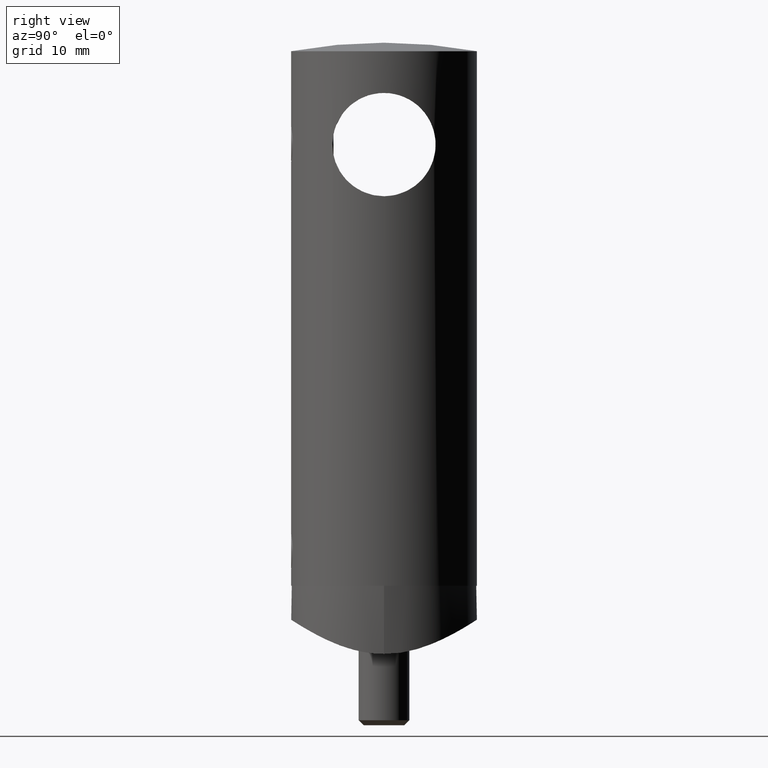
[diagram: clean part render]
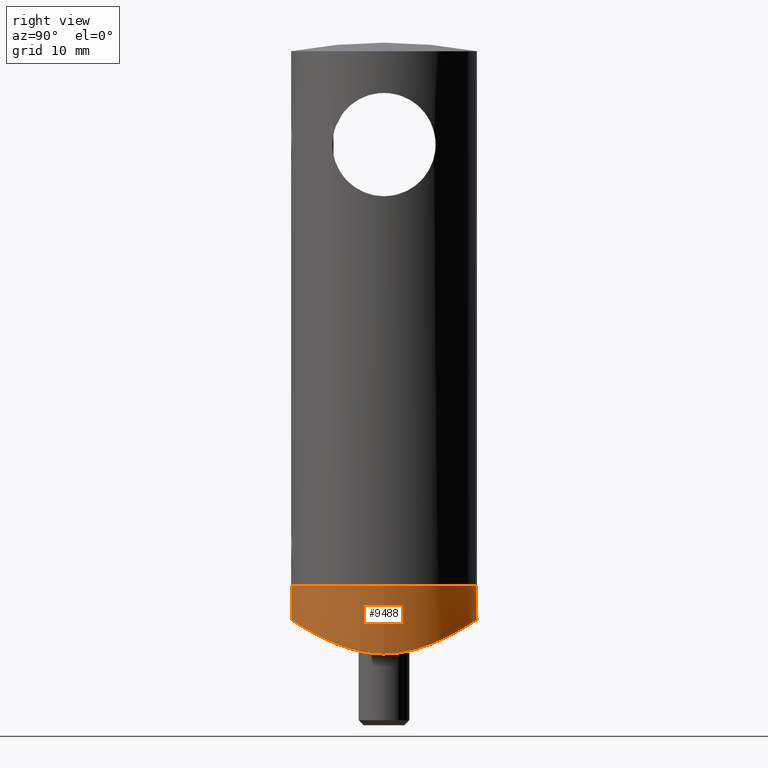
[diagram: same view with one face highlighted and labeled with its STEP entity id]
A machine part, right view. The second image highlights one B-rep face of the part: STEP entity #9488.
In plain terms, the highlighted cylindrical surface (bore or boss wall) has radius 10.95 mm, axis along (0, 0, 1).
Its self-contained STEP definition (entity closure, byte-faithful):
#514 = CARTESIAN_POINT ( 'NONE',  ( 0.000000000000000000, 10.94999999999999929, -5.750000000000001776 ) ) ;
#637 = CARTESIAN_POINT ( 'NONE',  ( -10.95198847609121451, -0.7118171743200889523, -9.794670814496956979 ) ) ;
#792 = CARTESIAN_POINT ( 'NONE',  ( -6.730030820169274008, 8.666679607907711969, -7.139533483458301077 ) ) ;
#843 = CARTESIAN_POINT ( 'NONE',  ( 4.917437567709627366, -9.810064059372233913, -6.468996850800253107 ) ) ;
#890 = CARTESIAN_POINT ( 'NONE',  ( 10.33681730554051192, -3.631079124461086938, -9.292408140327921728 ) ) ;
#938 = CARTESIAN_POINT ( 'NONE',  ( -2.959996584689042809, -10.56786301245745285, -5.996191686004162413 ) ) ;
#1001 = CARTESIAN_POINT ( 'NONE',  ( -9.809582634519843580, -4.878478684646284869, -8.898309364309685776 ) ) ;
#1053 = CARTESIAN_POINT ( 'NONE',  ( -4.645518892374168374, -9.922298315533529589, -6.399398219473660276 ) ) ;
#1276 = CARTESIAN_POINT ( 'NONE',  ( 0.000000000000000000, 0.000000000000000000, 5.750000000000000000 ) ) ;
#1561 = FACE_OUTER_BOUND ( 'NONE', #5871, .T. ) ;
#1812 = CARTESIAN_POINT ( 'NONE',  ( -10.64732733778773444, 2.582474402915730938, -9.539904010321800243 ) ) ;
#1856 = CARTESIAN_POINT ( 'NONE',  ( -10.87941567533503751, -1.441869195092188471, -9.731585385921057707 ) ) ;
#1920 = CARTESIAN_POINT ( 'NONE',  ( 0.000000000000000000, 0.000000000000000000, -1.749999999999998002 ) ) ;
#2012 = CARTESIAN_POINT ( 'NONE',  ( -7.998322242046567609, 7.486605205302141464, -7.766753881482975963 ) ) ;
#2058 = CARTESIAN_POINT ( 'NONE',  ( 10.23529659499144273, 3.907426802424408319, -9.213783028792283503 ) ) ;
#2117 = CARTESIAN_POINT ( 'NONE',  ( 1.452266532563440515, -10.87788132074340020, -5.797143923931495024 ) ) ;
#2168 = CARTESIAN_POINT ( 'NONE',  ( 8.667749000654012548, -6.700333129162086898, -8.148060830391628429 ) ) ;
#2211 = CARTESIAN_POINT ( 'NONE',  ( 4.627639269956550727, 9.930669703494444889, -6.394267290323226050 ) ) ;
#2257 = CARTESIAN_POINT ( 'NONE',  ( 10.21191707755098399, -3.967942517896859478, -9.195924782802006092 ) ) ;
#2988 = CARTESIAN_POINT ( 'NONE',  ( -10.85176810942076919, 1.509156963096680348, -9.709531812527981032 ) ) ;
#3041 = CARTESIAN_POINT ( 'NONE',  ( -4.934273506818555255, 9.801508284212960831, -6.474206939060009880 ) ) ;
#3140 = DIRECTION ( 'NONE',  ( -0.000000000000000000, -0.000000000000000000, 1.000000000000000000 ) ) ;
#3190 = CARTESIAN_POINT ( 'NONE',  ( -9.798886945069327226, 4.938032297541862015, -8.887830257643761556 ) ) ;
#3247 = CARTESIAN_POINT ( 'NONE',  ( -3.649986397884166678, -10.34898535425763377, -6.135751623057464244 ) ) ;
#3293 = CARTESIAN_POINT ( 'NONE',  ( 9.288931940382532559, 5.808586922625468496, -8.539723014647430333 ) ) ;
#3340 = CARTESIAN_POINT ( 'NONE',  ( 10.64640423190052054, -2.586355965133197987, -9.539149381438503994 ) ) ;
#3394 = CARTESIAN_POINT ( 'NONE',  ( -8.713248830424941360, -6.668291993733354239, -8.170402260772506864 ) ) ;
#3446 = CARTESIAN_POINT ( 'NONE',  ( 10.55479468711744673, -2.937828573796699150, -9.464624016628615522 ) ) ;
#3650 = CARTESIAN_POINT ( 'NONE',  ( 0.3733706210002074033, 10.94999999999999929, -5.750000000000003553 ) ) ;
#3898 = VERTEX_POINT ( 'NONE', #514 ) ;
#4264 = CARTESIAN_POINT ( 'NONE',  ( -8.883474752777638983, 6.411466823441349661, -8.280101745709313121 ) ) ;
#4367 = CARTESIAN_POINT ( 'NONE',  ( -5.556850910864768345, 9.461821083754074380, -6.680177522850429206 ) ) ;
#4420 = CARTESIAN_POINT ( 'NONE',  ( -10.33868571406257253, 3.625698530204107151, -9.293863955035334357 ) ) ;
#4461 = CARTESIAN_POINT ( 'NONE',  ( 8.266778147592914294, 7.214835360660763364, -7.906726903854046640 ) ) ;
#4511 = CARTESIAN_POINT ( 'NONE',  ( 10.85146791475362882, -1.511451789695886783, -9.709278500310860593 ) ) ;
#4567 = CARTESIAN_POINT ( 'NONE',  ( 10.87919409213141719, 1.444128645383031317, -9.731389579601888329 ) ) ;
#4614 = CARTESIAN_POINT ( 'NONE',  ( 10.94894190767665876, -0.4014474514221523793, -9.792066017781449361 ) ) ;
#4659 = CARTESIAN_POINT ( 'NONE',  ( -0.7738063085260448171, -10.92896024233015595, -5.763691165558240570 ) ) ;
#4920 = CARTESIAN_POINT ( 'NONE',  ( -8.673617379884035472E-16, 10.94999999999999929, -5.750000000000002665 ) ) ;
#4940 = EDGE_CURVE ( 'NONE', #3898, #3898, #9058, .T. ) ;
#5411 = CARTESIAN_POINT ( 'NONE',  ( -8.674436666472141511, 6.691646975888223992, -8.152084883947939176 ) ) ;
#5448 = CARTESIAN_POINT ( 'NONE',  ( 10.94999999999999929, 0.000000000000000000, -1.749999999999998002 ) ) ;
#5467 = CARTESIAN_POINT ( 'NONE',  ( -7.264775896212412931, 8.222237890532422711, -7.386554381788460688 ) ) ;
#5667 = CARTESIAN_POINT ( 'NONE',  ( -9.474494951377948837, -5.501037280035036225, -8.664499178143945102 ) ) ;
#5679 = FACE_OUTER_BOUND ( 'NONE', #11323, .T. ) ;
#5721 = CARTESIAN_POINT ( 'NONE',  ( 8.223414625171180603, -7.238769832133513660, -7.890687629840745565 ) ) ;
#5764 = CARTESIAN_POINT ( 'NONE',  ( 10.57043144332096674, 2.880786553959169272, -9.477236992533965676 ) ) ;
#5794 = AXIS2_PLACEMENT_3D ( 'NONE', #1276, #14428, #14339 ) ;
#5815 = CARTESIAN_POINT ( 'NONE',  ( 10.79473961177904329, -1.873167627655815792, -9.661478497784386832 ) ) ;
#5871 = EDGE_LOOP ( 'NONE', ( #14665 ) ) ;
#6392 = CIRCLE ( 'NONE', #13497, 10.94999999999999929 ) ;
#6745 = VERTEX_POINT ( 'NONE', #5448 ) ;
#6827 = CARTESIAN_POINT ( 'NONE',  ( -5.891917008406099221, -9.236332190205612136, -6.810640064963539686 ) ) ;
#6869 = CARTESIAN_POINT ( 'NONE',  ( 1.488582956514417077, 10.85474548004059869, -5.811770206739696576 ) ) ;
#6919 = CARTESIAN_POINT ( 'NONE',  ( 2.938192695712195768, 10.57404694462563732, -5.992248146107759688 ) ) ;
#6974 = CARTESIAN_POINT ( 'NONE',  ( -1.882258922895466702, -10.79325268188601328, -5.851537863896203895 ) ) ;
#7030 = CARTESIAN_POINT ( 'NONE',  ( 10.66134374622541436, 2.524523209338929597, -9.551355469383734587 ) ) ;
#7851 = CARTESIAN_POINT ( 'NONE',  ( -10.94894428843266887, 0.4008463375416358998, -9.792068053304609165 ) ) ;
#7908 = CARTESIAN_POINT ( 'NONE',  ( -10.79521210394975306, 1.870333956932258568, -9.661874852655529367 ) ) ;
#8005 = CARTESIAN_POINT ( 'NONE',  ( -0.7467412420004226892, 10.94999999999999929, -5.750000000000000000 ) ) ;
#8048 = CARTESIAN_POINT ( 'NONE',  ( -8.274706805201416771, -7.205644945949356561, -7.911238726087584716 ) ) ;
#8099 = CARTESIAN_POINT ( 'NONE',  ( -10.23745742856988628, -3.901712882491353174, -9.215441720334098363 ) ) ;
#8157 = CARTESIAN_POINT ( 'NONE',  ( 5.541342136532975360, -9.471014841782384508, -6.674707243084673891 ) ) ;
#8205 = CARTESIAN_POINT ( 'NONE',  ( 7.279761530226322996, 8.209661520793499534, -7.393522193404444387 ) ) ;
#8253 = CARTESIAN_POINT ( 'NONE',  ( -6.756981862805640837, -8.644869550942319236, -7.151699482660421658 ) ) ;
#9044 = CARTESIAN_POINT ( 'NONE',  ( -10.55599610924947918, 2.933437960413626033, -9.465593851156450356 ) ) ;
#9058 = B_SPLINE_CURVE_WITH_KNOTS ( 'NONE', 3,
 ( #10345, #8005, #10250, #12652, #11572, #3041, #4367, #792, #5467, #2012, #10395, #5411, #4264, #13878, #3190, #11619, #4420, #9044, #1812, #7908, #2988, #11470, #7851, #637, #1856, #12712, #13921, #15300, #8099, #15448, #1001, #5667, #9301, #3394, #8048, #12917, #8253, #6827, #11737, #10545, #1053, #3247, #938, #6974, #15245, #4659, #14268, #13072, #2117, #15349, #13110, #843, #8157, #9401, #9452, #9347, #5721, #2168, #9251, #10490, #13018, #2257, #890, #3446, #3340, #5815, #4511, #11837, #4614, #14072, #4567, #7030, #5764, #11782, #2058, #14227, #11677, #10645, #3293, #15397, #4461, #8205, #10441, #12968, #11894, #14122, #2211, #14171, #6919, #10597, #6869, #14508, #3650, #4920 ),
 .UNSPECIFIED., .T., .F.,
 ( 4, 2, 2, 2, 2, 2, 2, 2, 2, 2, 2, 2, 2, 2, 2, 2, 2, 2, 2, 2, 2, 2, 2, 2, 2, 2, 2, 2, 2, 2, 2, 2, 2, 2, 2, 2, 2, 2, 2, 2, 2, 2, 2, 2, 2, 2, 4 ),
 ( 0.000000000000000000, 0.002204674916900577816, 0.004409349833801155631, 0.006614024750701735615, 0.008818699667602314732, 0.009921037126052606459, 0.01102337458450289645, 0.01322804950140347297, 0.01433038695985375775, 0.01543272441830404601, 0.01653506187675433253, 0.01763739933520461906, 0.01984207425210519557, 0.02094441171055547862, 0.02204674916900576515, 0.02314908662745604820, 0.02425142408590633472, 0.02645609900280690777, 0.02866077391970747734, 0.02976311137815776733, 0.03086544883660805733, 0.03307012375350862343, 0.03417246121195890995, 0.03527479867040919648, 0.03747947358730976952, 0.03968414850421033563, 0.04188882342111090173, 0.04409349833801147478, 0.04519583579646176130, 0.04629817325491203395, 0.04850284817181260699, 0.04960518563026288658, 0.05070752308871317310, 0.05180986054716345268, 0.05291219800561372533, 0.05511687292251429837, 0.05621921038096458489, 0.05732154783941486448, 0.05842388529786515100, 0.05952622275631542365, 0.06173089767321599669, 0.06393557259011656280, 0.06503791004856684932, 0.06614024750701713584, 0.06834492242391770889, 0.06944725988236800929, 0.07054959734081828193 ),
 .UNSPECIFIED. ) ;
#9251 = CARTESIAN_POINT ( 'NONE',  ( 8.877433961888492320, -6.419858381013207271, -8.276346123866254345 ) ) ;
#9301 = CARTESIAN_POINT ( 'NONE',  ( -9.293821020510860009, -5.800730269746900980, -8.542963866343818324 ) ) ;
#9347 = CARTESIAN_POINT ( 'NONE',  ( 7.989808668690983495, -7.495715265412895789, -7.762153942458378530 ) ) ;
#9401 = CARTESIAN_POINT ( 'NONE',  ( 6.717999677049601992, -8.676120973484600540, -7.134234503047154341 ) ) ;
#9452 = CARTESIAN_POINT ( 'NONE',  ( 7.254245891667538082, -8.231620505888173511, -7.381482026767613114 ) ) ;
#9488 = ADVANCED_FACE ( 'NONE', ( #1561, #5679 ), #11534, .T. ) ;
#10250 = CARTESIAN_POINT ( 'NONE',  ( -1.477209388873391482, 10.87444454831140561, -5.799375572329035222 ) ) ;
#10345 = CARTESIAN_POINT ( 'NONE',  ( -8.673617379884035472E-16, 10.94999999999999929, -5.750000000000002665 ) ) ;
#10395 = CARTESIAN_POINT ( 'NONE',  ( -8.231296336865392860, 7.229782247430190267, -7.895107504779629970 ) ) ;
#10441 = CARTESIAN_POINT ( 'NONE',  ( 6.745065774781788370, 8.654267804473475323, -7.146432902309400426 ) ) ;
#10490 = CARTESIAN_POINT ( 'NONE',  ( 9.461595865578106057, -5.555570645424507070, -8.649577779853206749 ) ) ;
#10545 = CARTESIAN_POINT ( 'NONE',  ( -4.970478836501090569, -9.763346979481307031, -6.496455371433944137 ) ) ;
#10597 = CARTESIAN_POINT ( 'NONE',  ( 1.857826616693877275, 10.79750973782263301, -5.848792439000015442 ) ) ;
#10645 = CARTESIAN_POINT ( 'NONE',  ( 9.470109693118349270, 5.508614592727200332, -8.661510961139544662 ) ) ;
#11323 = EDGE_LOOP ( 'NONE', ( #13010 ) ) ;
#11419 = DIRECTION ( 'NONE',  ( 1.000000000000000000, 0.000000000000000000, 0.000000000000000000 ) ) ;
#11470 = CARTESIAN_POINT ( 'NONE',  ( -10.92870214897537373, 0.7758190374603018968, -9.774692575542266226 ) ) ;
#11534 = CYLINDRICAL_SURFACE ( 'NONE', #5794, 10.94999999999999929 ) ;
#11572 = CARTESIAN_POINT ( 'NONE',  ( -3.613987059323615192, 10.36126040694993478, -6.127982685190221268 ) ) ;
#11619 = CARTESIAN_POINT ( 'NONE',  ( -10.21412637448893079, 3.962207022534765422, -9.197614260612791526 ) ) ;
#11677 = CARTESIAN_POINT ( 'NONE',  ( 9.806131957240317831, 4.885446588398185241, -8.895831644228916701 ) ) ;
#11737 = CARTESIAN_POINT ( 'NONE',  ( -5.592625241924395141, -9.420782717441381848, -6.701812921854455318 ) ) ;
#11782 = CARTESIAN_POINT ( 'NONE',  ( 10.35761880147759229, 3.571090145977619201, -9.308624502657911748 ) ) ;
#11837 = CARTESIAN_POINT ( 'NONE',  ( 10.92863707406065465, -0.7770032953400665132, -9.774636520123790362 ) ) ;
#11894 = CARTESIAN_POINT ( 'NONE',  ( 5.577491591896114542, 9.429776438195814237, -6.696480188077203799 ) ) ;
#12652 = CARTESIAN_POINT ( 'NONE',  ( -2.908031627076410164, 10.58201511380506687, -5.987159159428712130 ) ) ;
#12712 = CARTESIAN_POINT ( 'NONE',  ( -10.66224500808580800, -2.520629770646548362, -9.552093983451188208 ) ) ;
#12917 = CARTESIAN_POINT ( 'NONE',  ( -7.290265288139783806, -8.200251449051814134, -7.398601626739076842 ) ) ;
#12968 = CARTESIAN_POINT ( 'NONE',  ( 5.877620805515440416, 9.245459131432669508, -6.805298016302697484 ) ) ;
#13010 = ORIENTED_EDGE ( 'NONE', *, *, #4940, .T. ) ;
#13018 = CARTESIAN_POINT ( 'NONE',  ( 9.795493327668371109, -4.944904788168211773, -8.885382186297720253 ) ) ;
#13072 = CARTESIAN_POINT ( 'NONE',  ( 0.7197045531815232655, -10.95187688228041623, -5.748780307314288684 ) ) ;
#13110 = CARTESIAN_POINT ( 'NONE',  ( 3.593644627500637956, -10.36842646559952286, -6.123465985740515372 ) ) ;
#13497 = AXIS2_PLACEMENT_3D ( 'NONE', #1920, #3140, #11419 ) ;
#13878 = CARTESIAN_POINT ( 'NONE',  ( -9.465935197402062684, 5.548035047103799577, -8.652562614426770438 ) ) ;
#13921 = CARTESIAN_POINT ( 'NONE',  ( -10.57160307786288378, -2.876417745079140609, -9.478184856008658343 ) ) ;
#14066 = EDGE_CURVE ( 'NONE', #6745, #6745, #6392, .T. ) ;
#14072 = CARTESIAN_POINT ( 'NONE',  ( 10.95199305943802948, 0.7129543055115454830, -9.794674733213167173 ) ) ;
#14122 = CARTESIAN_POINT ( 'NONE',  ( 4.953560312386002806, 9.771966862591126457, -6.491226145437169137 ) ) ;
#14171 = CARTESIAN_POINT ( 'NONE',  ( 3.629804737391232994, 10.35615765906433872, -6.131232922597432911 ) ) ;
#14227 = CARTESIAN_POINT ( 'NONE',  ( 9.959826338002807589, 4.564114363222476101, -9.007577092198808089 ) ) ;
#14268 = CARTESIAN_POINT ( 'NONE',  ( -0.4018684571910203229, -10.94900781875871942, -5.750644769402242673 ) ) ;
#14339 = DIRECTION ( 'NONE',  ( 1.000000000000000000, 0.000000000000000000, 0.000000000000000000 ) ) ;
#14428 = DIRECTION ( 'NONE',  ( -0.000000000000000000, -0.000000000000000000, 1.000000000000000000 ) ) ;
#14508 = CARTESIAN_POINT ( 'NONE',  ( 0.7471485046060175605, 10.93083472416227941, -5.762473224318154230 ) ) ;
#14665 = ORIENTED_EDGE ( 'NONE', *, *, #14066, .F. ) ;
#15245 = CARTESIAN_POINT ( 'NONE',  ( -1.513907376176437669, -10.85122263332139347, -5.814048855421538597 ) ) ;
#15300 = CARTESIAN_POINT ( 'NONE',  ( -10.35941957191862350, -3.565809419056972018, -9.310031962344309520 ) ) ;
#15349 = CARTESIAN_POINT ( 'NONE',  ( 2.885990040728032113, -10.58812738847623969, -5.983258084705814106 ) ) ;
#15397 = CARTESIAN_POINT ( 'NONE',  ( 8.706728191599379940, 6.676910866607889794, -8.166429194783976442 ) ) ;
#15448 = CARTESIAN_POINT ( 'NONE',  ( -9.962800948346083985, -4.557575592660432662, -9.009763349846030778 ) ) ;